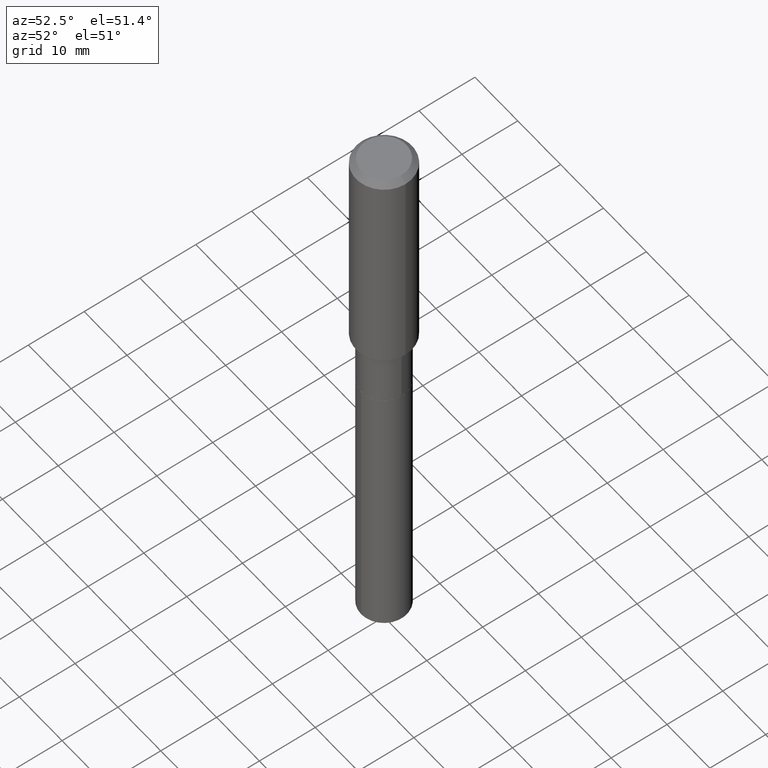
[diagram: clean part render]
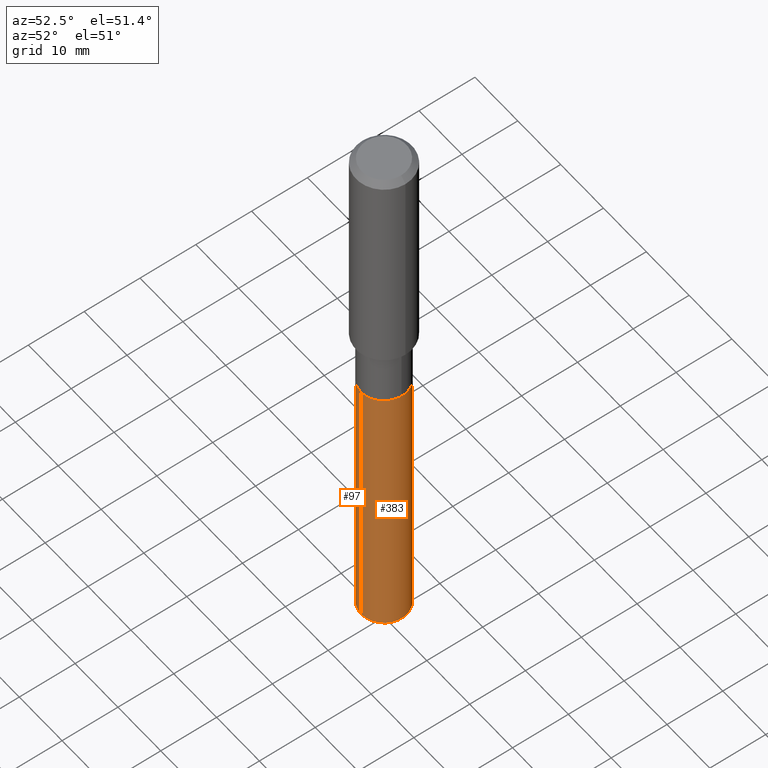
[diagram: same view with one multi-face feature highlighted, each face labeled with its STEP entity id]
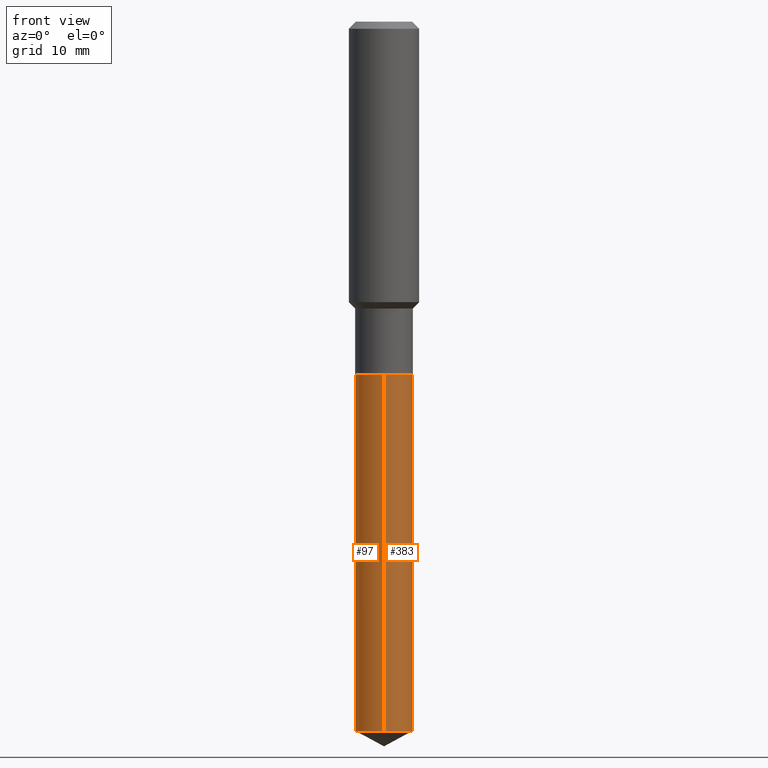
[diagram: same view with one multi-face feature highlighted, each face labeled with its STEP entity id]
A machine part, auxiliary view. The highlighted faces form ONE feature: a constant-radius fillet chain: 2 tangent blend faces with common blend radius 4.0996 mm. The faces share edges in the B-rep.
A second angle (front view) of the same feature is appended — it is thin or edge-on in the first view.
Their STEP definitions:
[1] entity #97 (Cylinder):
#39 = DIRECTION ( 'NONE',  ( -6.982962677686266711E-15, -1.000000000000000000, 3.385189583227092077E-15 ) ) ;
#52 = CIRCLE ( 'NONE', #322, 0.1613999999999999879 ) ;
#57 = ORIENTED_EDGE ( 'NONE', *, *, #70, .T. ) ;
#70 = EDGE_CURVE ( 'NONE', #392, #356, #467, .T. ) ;
#92 = DIRECTION ( 'NONE',  ( -6.982962677686266711E-15, -1.000000000000000000, 3.385189583227092077E-15 ) ) ;
#97 = ADVANCED_FACE ( 'NONE', ( #474 ), #432, .T. ) ;
#106 = DIRECTION ( 'NONE',  ( -2.445494769570250322E-29, 3.491444157797918677E-15, 1.000000000000000000 ) ) ;
#113 = DIRECTION ( 'NONE',  ( -2.445494769570250322E-29, 3.491444157797918282E-15, 1.000000000000000000 ) ) ;
#163 = EDGE_CURVE ( 'NONE', #356, #203, #328, .T. ) ;
#164 = CARTESIAN_POINT ( 'NONE',  ( 1.146815975516898841E-15, 0.1613999999999861656, -3.969282097729838643 ) ) ;
#171 = ORIENTED_EDGE ( 'NONE', *, *, #163, .T. ) ;
#177 = VECTOR ( 'NONE', #113, 39.37007874015748143 ) ;
#191 = LINE ( 'NONE', #339, #177 ) ;
#196 = CARTESIAN_POINT ( 'NONE',  ( -1.127050176178466498E-15, -0.1614000000000138935, -3.969282097729837311 ) ) ;
#203 = VERTEX_POINT ( 'NONE', #375 ) ;
#217 = CARTESIAN_POINT ( 'NONE',  ( 9.706807297509149291E-29, -1.385860027167039084E-14, -3.969282097729837755 ) ) ;
#221 = EDGE_CURVE ( 'NONE', #229, #203, #52, .T. ) ;
#229 = VERTEX_POINT ( 'NONE', #302 ) ;
#237 = ORIENTED_EDGE ( 'NONE', *, *, #321, .F. ) ;
#266 = CARTESIAN_POINT ( 'NONE',  ( 4.832980001663685166E-29, -6.900214569955707952E-15, -1.976299999999999946 ) ) ;
#296 = DIRECTION ( 'NONE',  ( -2.445494769570250322E-29, 3.491444157797918282E-15, 1.000000000000000000 ) ) ;
#302 = CARTESIAN_POINT ( 'NONE',  ( 1.146815975516898841E-15, 0.1613999999999930768, -1.976300000000000390 ) ) ;
#320 = CARTESIAN_POINT ( 'NONE',  ( 4.832980001663685166E-29, -6.900214569955707952E-15, -1.976299999999999946 ) ) ;
#321 = EDGE_CURVE ( 'NONE', #392, #229, #191, .T. ) ;
#322 = AXIS2_PLACEMENT_3D ( 'NONE', #266, #106, #39 ) ;
#328 = LINE ( 'NONE', #485, #370 ) ;
#339 = CARTESIAN_POINT ( 'NONE',  ( 1.146815975516849537E-15, 0.1613999999999930768, -1.976300000000000390 ) ) ;
#356 = VERTEX_POINT ( 'NONE', #196 ) ;
#369 = DIRECTION ( 'NONE',  ( -6.982962677686266711E-15, -1.000000000000000000, 3.385189583227092077E-15 ) ) ;
#370 = VECTOR ( 'NONE', #296, 39.37007874015748143 ) ;
#375 = CARTESIAN_POINT ( 'NONE',  ( -1.127050176178515013E-15, -0.1614000000000068713, -1.976299999999999280 ) ) ;
#392 = VERTEX_POINT ( 'NONE', #164 ) ;
#407 = DIRECTION ( 'NONE',  ( -2.445494769570250322E-29, 3.491444157797918677E-15, 1.000000000000000000 ) ) ;
#427 = EDGE_LOOP ( 'NONE', ( #237, #57, #171, #461 ) ) ;
#432 = CYLINDRICAL_SURFACE ( 'NONE', #486, 0.1613999999999999879 ) ;
#461 = ORIENTED_EDGE ( 'NONE', *, *, #221, .F. ) ;
#467 = CIRCLE ( 'NONE', #484, 0.1613999999999999879 ) ;
#474 = FACE_OUTER_BOUND ( 'NONE', #427, .T. ) ;
#478 = DIRECTION ( 'NONE',  ( -2.445494769570250322E-29, 3.491444157797918677E-15, 1.000000000000000000 ) ) ;
#484 = AXIS2_PLACEMENT_3D ( 'NONE', #217, #407, #369 ) ;
#485 = CARTESIAN_POINT ( 'NONE',  ( -1.127050176178515013E-15, -0.1614000000000068713, -1.976299999999999280 ) ) ;
#486 = AXIS2_PLACEMENT_3D ( 'NONE', #320, #478, #92 ) ;
[2] entity #383 (Cylinder):
#19 = FACE_OUTER_BOUND ( 'NONE', #347, .T. ) ;
#24 = DIRECTION ( 'NONE',  ( -2.445494769570250322E-29, 3.491444157797918677E-15, 1.000000000000000000 ) ) ;
#63 = DIRECTION ( 'NONE',  ( -6.982962677686266711E-15, -1.000000000000000000, 3.385189583227092077E-15 ) ) ;
#79 = AXIS2_PLACEMENT_3D ( 'NONE', #140, #318, #440 ) ;
#95 = EDGE_CURVE ( 'NONE', #356, #392, #450, .T. ) ;
#113 = DIRECTION ( 'NONE',  ( -2.445494769570250322E-29, 3.491444157797918282E-15, 1.000000000000000000 ) ) ;
#135 = EDGE_CURVE ( 'NONE', #203, #229, #244, .T. ) ;
#140 = CARTESIAN_POINT ( 'NONE',  ( 9.706807297509149291E-29, -1.385860027167039084E-14, -3.969282097729837755 ) ) ;
#155 = DIRECTION ( 'NONE',  ( -6.982962677686266711E-15, -1.000000000000000000, 3.385189583227092077E-15 ) ) ;
#163 = EDGE_CURVE ( 'NONE', #356, #203, #328, .T. ) ;
#164 = CARTESIAN_POINT ( 'NONE',  ( 1.146815975516898841E-15, 0.1613999999999861656, -3.969282097729838643 ) ) ;
#177 = VECTOR ( 'NONE', #113, 39.37007874015748143 ) ;
#191 = LINE ( 'NONE', #339, #177 ) ;
#196 = CARTESIAN_POINT ( 'NONE',  ( -1.127050176178466498E-15, -0.1614000000000138935, -3.969282097729837311 ) ) ;
#203 = VERTEX_POINT ( 'NONE', #375 ) ;
#213 = CARTESIAN_POINT ( 'NONE',  ( 4.832980001663685166E-29, -6.900214569955707952E-15, -1.976299999999999946 ) ) ;
#229 = VERTEX_POINT ( 'NONE', #302 ) ;
#236 = CARTESIAN_POINT ( 'NONE',  ( 4.832980001663685166E-29, -6.900214569955707952E-15, -1.976299999999999946 ) ) ;
#244 = CIRCLE ( 'NONE', #304, 0.1613999999999999879 ) ;
#264 = ORIENTED_EDGE ( 'NONE', *, *, #321, .T. ) ;
#276 = ORIENTED_EDGE ( 'NONE', *, *, #135, .F. ) ;
#296 = DIRECTION ( 'NONE',  ( -2.445494769570250322E-29, 3.491444157797918282E-15, 1.000000000000000000 ) ) ;
#302 = CARTESIAN_POINT ( 'NONE',  ( 1.146815975516898841E-15, 0.1613999999999930768, -1.976300000000000390 ) ) ;
#304 = AXIS2_PLACEMENT_3D ( 'NONE', #213, #24, #63 ) ;
#305 = AXIS2_PLACEMENT_3D ( 'NONE', #236, #465, #155 ) ;
#318 = DIRECTION ( 'NONE',  ( -2.445494769570250322E-29, 3.491444157797918677E-15, 1.000000000000000000 ) ) ;
#321 = EDGE_CURVE ( 'NONE', #392, #229, #191, .T. ) ;
#328 = LINE ( 'NONE', #485, #370 ) ;
#339 = CARTESIAN_POINT ( 'NONE',  ( 1.146815975516849537E-15, 0.1613999999999930768, -1.976300000000000390 ) ) ;
#347 = EDGE_LOOP ( 'NONE', ( #463, #264, #276, #412 ) ) ;
#356 = VERTEX_POINT ( 'NONE', #196 ) ;
#370 = VECTOR ( 'NONE', #296, 39.37007874015748143 ) ;
#375 = CARTESIAN_POINT ( 'NONE',  ( -1.127050176178515013E-15, -0.1614000000000068713, -1.976299999999999280 ) ) ;
#383 = ADVANCED_FACE ( 'NONE', ( #19 ), #389, .T. ) ;
#389 = CYLINDRICAL_SURFACE ( 'NONE', #305, 0.1613999999999999879 ) ;
#392 = VERTEX_POINT ( 'NONE', #164 ) ;
#412 = ORIENTED_EDGE ( 'NONE', *, *, #163, .F. ) ;
#440 = DIRECTION ( 'NONE',  ( -6.982962677686266711E-15, -1.000000000000000000, 3.385189583227092077E-15 ) ) ;
#450 = CIRCLE ( 'NONE', #79, 0.1613999999999999879 ) ;
#463 = ORIENTED_EDGE ( 'NONE', *, *, #95, .T. ) ;
#465 = DIRECTION ( 'NONE',  ( -2.445494769570250322E-29, 3.491444157797918677E-15, 1.000000000000000000 ) ) ;
#485 = CARTESIAN_POINT ( 'NONE',  ( -1.127050176178515013E-15, -0.1614000000000068713, -1.976299999999999280 ) ) ;